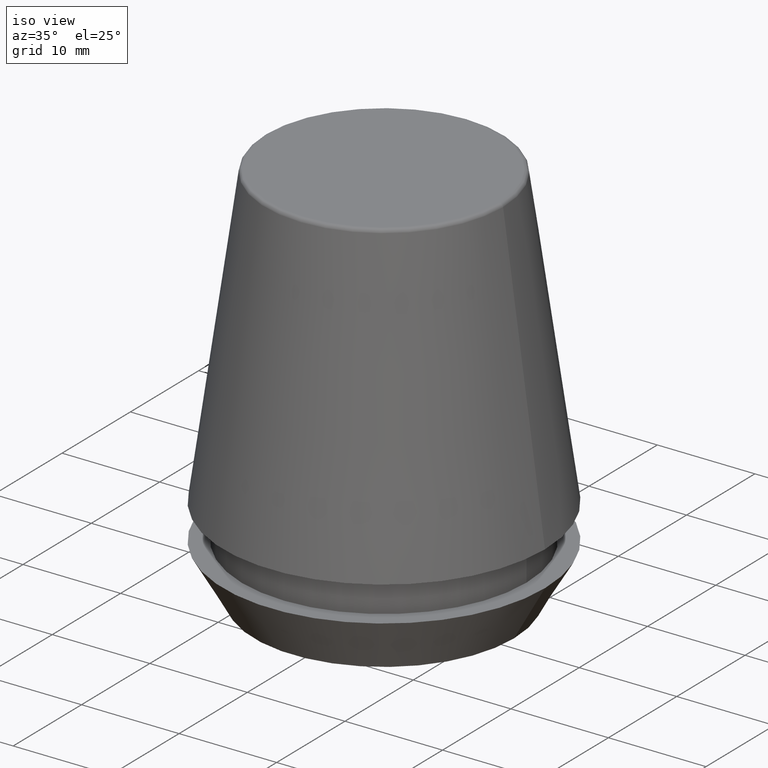
[diagram: clean part render]
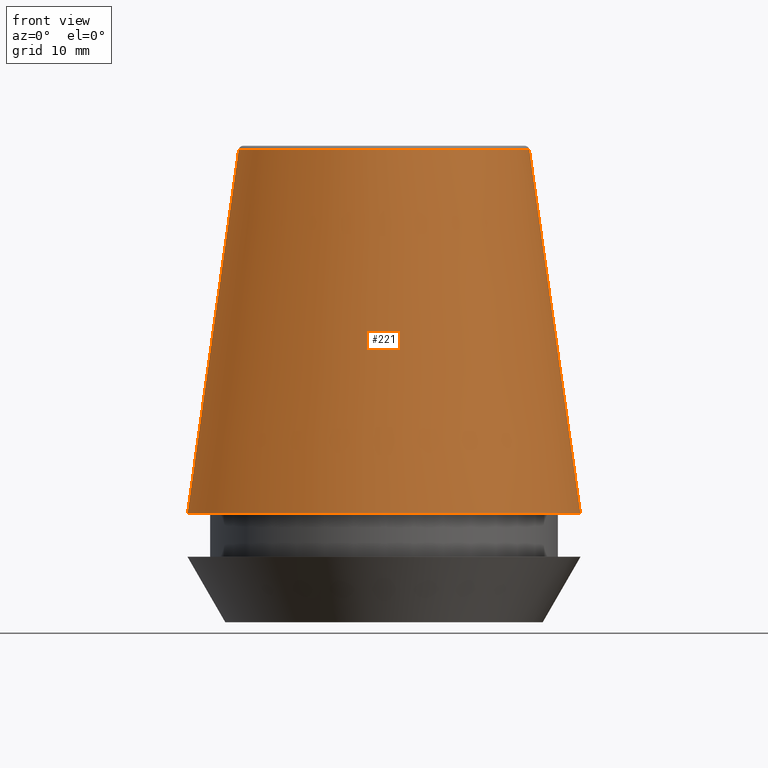
[diagram: tour spotlight — one face highlighted and labeled with its STEP entity id]
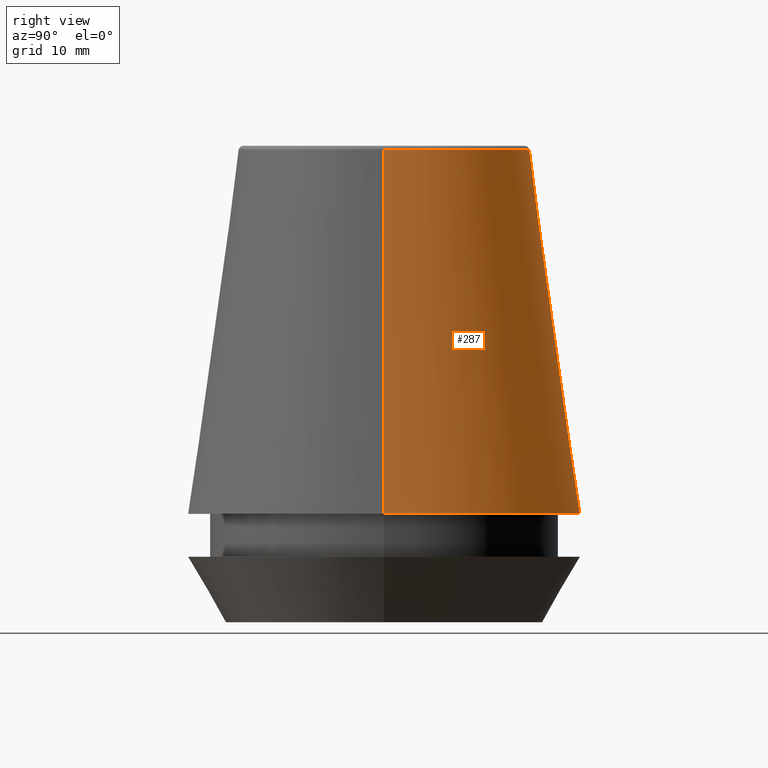
[diagram: tour spotlight — one face highlighted and labeled with its STEP entity id]
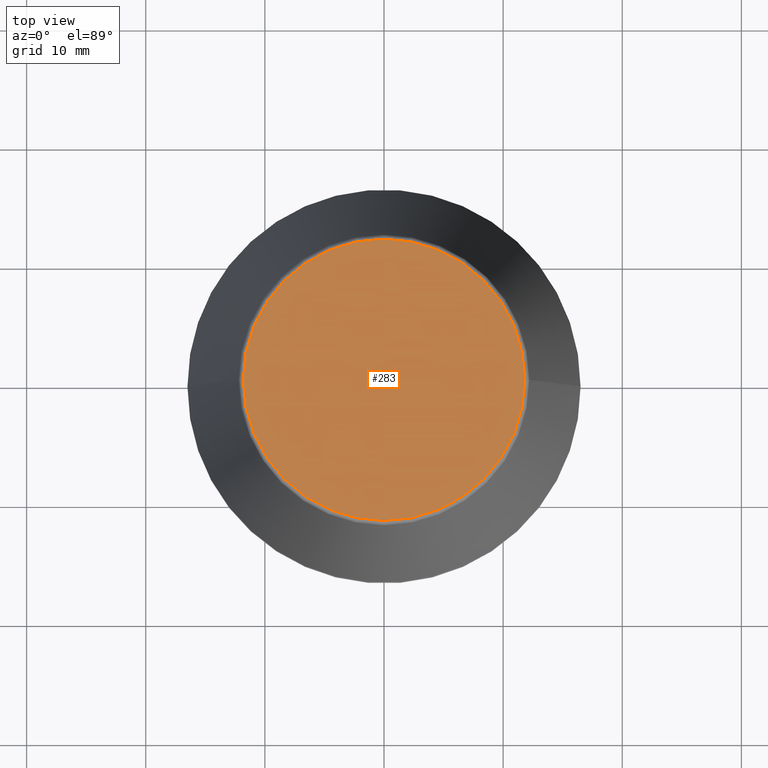
[diagram: tour spotlight — one face highlighted and labeled with its STEP entity id]
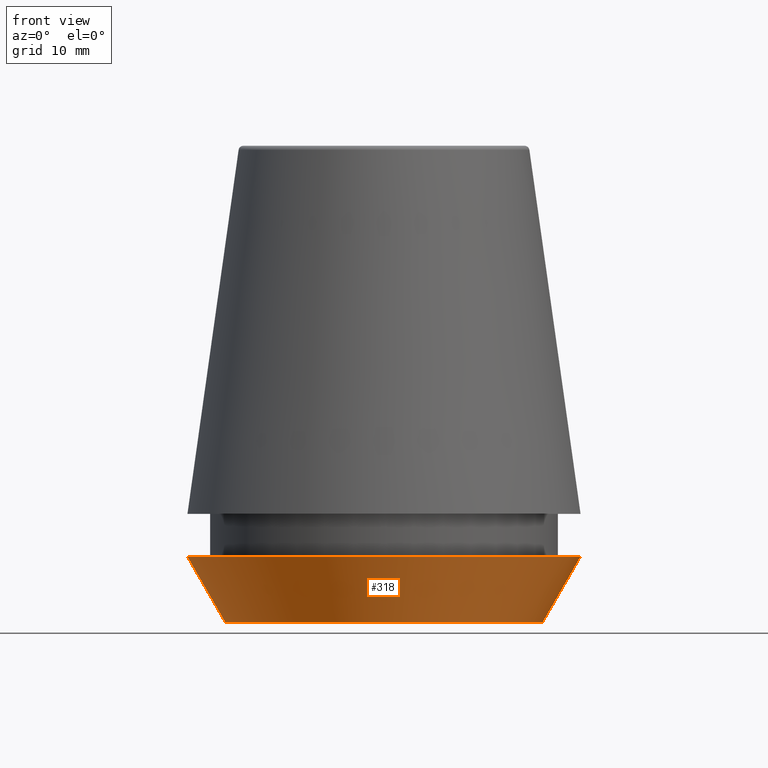
[diagram: tour spotlight — one face highlighted and labeled with its STEP entity id]
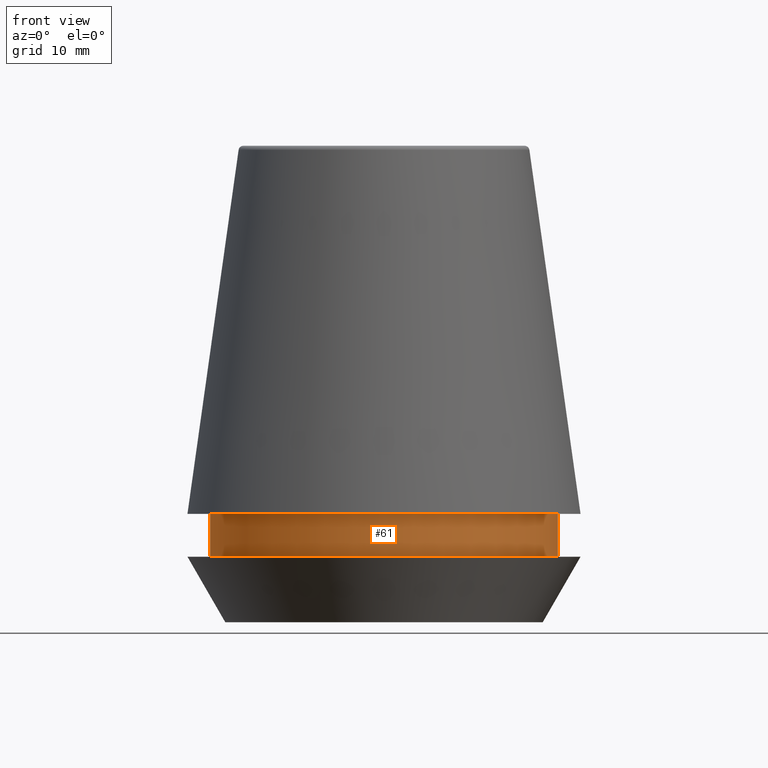
[diagram: tour spotlight — one face highlighted and labeled with its STEP entity id]
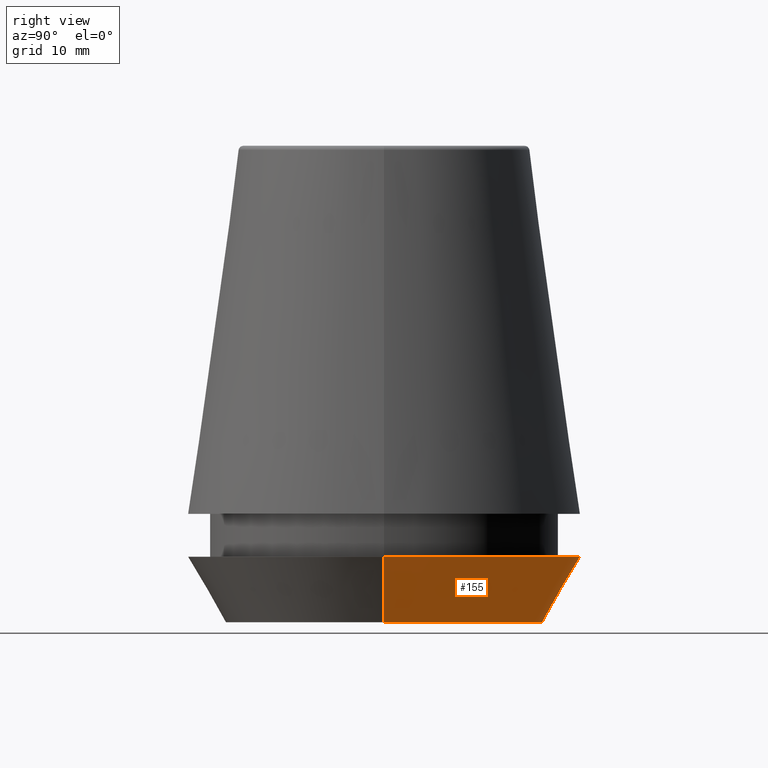
[diagram: tour spotlight — one face highlighted and labeled with its STEP entity id]
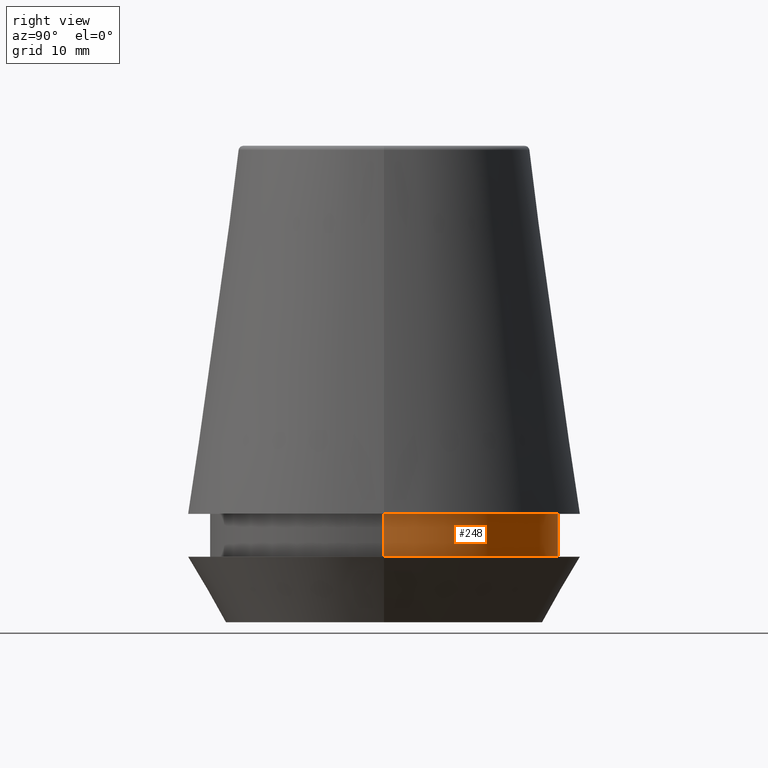
[diagram: tour spotlight — one face highlighted and labeled with its STEP entity id]
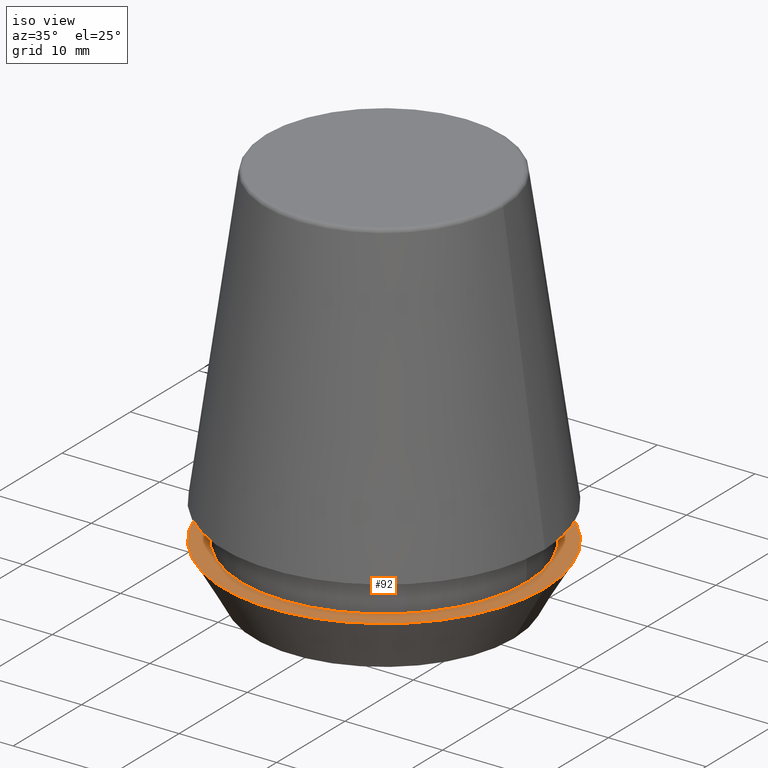
[diagram: tour spotlight — one face highlighted and labeled with its STEP entity id]
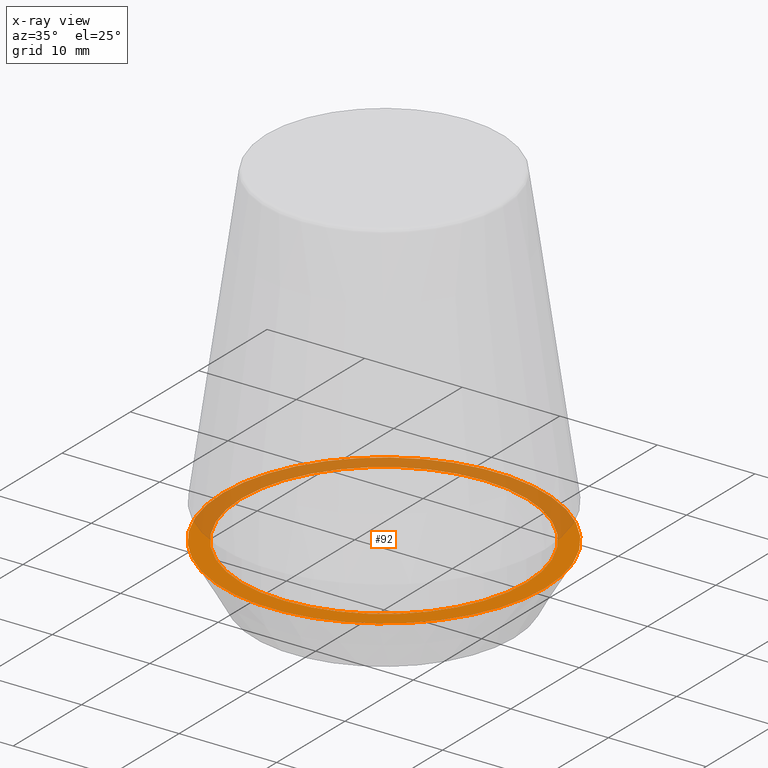
[diagram: x-ray of the same camera — body ghosted, this tour face saturated]
A machine part: a face-by-face anatomy tour. The part has 12 B-rep faces; the first image is the clean iso view, then the 8 largest visible faces are spotlighted one at a time (largest first), each with its STEP entity span.

Face 1 — front view, entity #221. In plain terms, the highlighted conical surface has half-angle 8 deg.
Definition (entity closure, byte-faithful):
#3 = ORIENTED_EDGE ( 'NONE', *, *, #351, .F. ) ;
#4 = ORIENTED_EDGE ( 'NONE', *, *, #353, .F. ) ;
#17 = EDGE_LOOP ( 'NONE', ( #4, #3, #22, #130 ) ) ;
#22 = ORIENTED_EDGE ( 'NONE', *, *, #72, .T. ) ;
#54 = AXIS2_PLACEMENT_3D ( 'NONE', #113, #332, #301 ) ;
#67 = LINE ( 'NONE', #354, #365 ) ;
#72 = EDGE_CURVE ( 'NONE', #194, #290, #216, .T. ) ;
#83 = VECTOR ( 'NONE', #311, 1000.000000000000000 ) ;
#84 = AXIS2_PLACEMENT_3D ( 'NONE', #172, #142, #174 ) ;
#94 = VERTEX_POINT ( 'NONE', #159 ) ;
#113 = CARTESIAN_POINT ( 'NONE',  ( 0.0000000000000000000, 0.0000000000000000000, 9.099999999999997900 ) ) ;
#115 = CARTESIAN_POINT ( 'NONE',  ( 0.0000000000000000000, 0.0000000000000000000, 9.099999999999997900 ) ) ;
#130 = ORIENTED_EDGE ( 'NONE', *, *, #193, .T. ) ;
#142 = DIRECTION ( 'NONE',  ( -0.0000000000000000000, -0.0000000000000000000, 1.000000000000000000 ) ) ;
#148 = DIRECTION ( 'NONE',  ( -1.000000000000000000, 0.0000000000000000000, 0.0000000000000000000 ) ) ;
#159 = CARTESIAN_POINT ( 'NONE',  ( 12.20600611160694300, 1.757755848304969800E-015, 39.65566924038402900 ) ) ;
#172 = CARTESIAN_POINT ( 'NONE',  ( 0.0000000000000000000, 0.0000000000000000000, 39.65566924038402900 ) ) ;
#174 = DIRECTION ( 'NONE',  ( 1.000000000000000000, 0.0000000000000000000, 0.0000000000000000000 ) ) ;
#193 = EDGE_CURVE ( 'NONE', #290, #195, #268, .T. ) ;
#194 = VERTEX_POINT ( 'NONE', #269 ) ;
#195 = VERTEX_POINT ( 'NONE', #302 ) ;
#216 = LINE ( 'NONE', #308, #83 ) ;
#221 = ADVANCED_FACE ( 'NONE', ( #250 ), #243, .T. ) ;
#237 = DIRECTION ( 'NONE',  ( 0.0000000000000000000, 0.0000000000000000000, -1.000000000000000000 ) ) ;
#239 = CARTESIAN_POINT ( 'NONE',  ( -16.50032537154048700, 0.0000000000000000000, 9.099999999999997900 ) ) ;
#243 = CONICAL_SURFACE ( 'NONE', #329, 16.50032537154048700, 0.1396263401595395900 ) ;
#250 = FACE_OUTER_BOUND ( 'NONE', #17, .T. ) ;
#265 = DIRECTION ( 'NONE',  ( 0.1391731009600586900, 1.704378926181473100E-017, -0.9902680687415712500 ) ) ;
#268 = CIRCLE ( 'NONE', #54, 16.50032537154048700 ) ;
#269 = CARTESIAN_POINT ( 'NONE',  ( -12.20600611160694300, 0.0000000000000000000, 39.65566924038402900 ) ) ;
#290 = VERTEX_POINT ( 'NONE', #239 ) ;
#301 = DIRECTION ( 'NONE',  ( 1.000000000000000000, 0.0000000000000000000, 0.0000000000000000000 ) ) ;
#302 = CARTESIAN_POINT ( 'NONE',  ( 16.50032537154048700, 2.020707065114692300E-015, 9.099999999999997900 ) ) ;
#308 = CARTESIAN_POINT ( 'NONE',  ( -16.50032537154048700, 0.0000000000000000000, 9.099999999999997900 ) ) ;
#311 = DIRECTION ( 'NONE',  ( -0.1391731009600586900, 0.0000000000000000000, -0.9902680687415712500 ) ) ;
#321 = CIRCLE ( 'NONE', #84, 12.20600611160694300 ) ;
#329 = AXIS2_PLACEMENT_3D ( 'NONE', #115, #237, #148 ) ;
#332 = DIRECTION ( 'NONE',  ( -0.0000000000000000000, -0.0000000000000000000, 1.000000000000000000 ) ) ;
#351 = EDGE_CURVE ( 'NONE', #194, #94, #321, .T. ) ;
#353 = EDGE_CURVE ( 'NONE', #94, #195, #67, .T. ) ;
#354 = CARTESIAN_POINT ( 'NONE',  ( 16.50032537154048700, 2.020707065114692300E-015, 9.099999999999997900 ) ) ;
#365 = VECTOR ( 'NONE', #265, 1000.000000000000000 ) ;

Face 2 — right view, entity #287. In plain terms, the highlighted conical surface has half-angle 8 deg.
Definition (entity closure, byte-faithful):
#1 = DIRECTION ( 'NONE',  ( 1.000000000000000000, 0.0000000000000000000, 0.0000000000000000000 ) ) ;
#6 = ORIENTED_EDGE ( 'NONE', *, *, #206, .T. ) ;
#51 = DIRECTION ( 'NONE',  ( 0.0000000000000000000, 0.0000000000000000000, -1.000000000000000000 ) ) ;
#55 = CARTESIAN_POINT ( 'NONE',  ( 0.0000000000000000000, 0.0000000000000000000, 9.099999999999997900 ) ) ;
#56 = DIRECTION ( 'NONE',  ( -0.0000000000000000000, -0.0000000000000000000, 1.000000000000000000 ) ) ;
#60 = ORIENTED_EDGE ( 'NONE', *, *, #375, .F. ) ;
#67 = LINE ( 'NONE', #354, #365 ) ;
#72 = EDGE_CURVE ( 'NONE', #194, #290, #216, .T. ) ;
#83 = VECTOR ( 'NONE', #311, 1000.000000000000000 ) ;
#94 = VERTEX_POINT ( 'NONE', #159 ) ;
#126 = ORIENTED_EDGE ( 'NONE', *, *, #72, .F. ) ;
#128 = CONICAL_SURFACE ( 'NONE', #338, 16.50032537154048700, 0.1396263401595395900 ) ;
#144 = AXIS2_PLACEMENT_3D ( 'NONE', #253, #263, #1 ) ;
#159 = CARTESIAN_POINT ( 'NONE',  ( 12.20600611160694300, 1.757755848304969800E-015, 39.65566924038402900 ) ) ;
#168 = DIRECTION ( 'NONE',  ( -1.000000000000000000, 0.0000000000000000000, 0.0000000000000000000 ) ) ;
#171 = ORIENTED_EDGE ( 'NONE', *, *, #353, .T. ) ;
#178 = EDGE_LOOP ( 'NONE', ( #60, #171, #6, #126 ) ) ;
#194 = VERTEX_POINT ( 'NONE', #269 ) ;
#195 = VERTEX_POINT ( 'NONE', #302 ) ;
#198 = FACE_OUTER_BOUND ( 'NONE', #178, .T. ) ;
#206 = EDGE_CURVE ( 'NONE', #195, #290, #356, .T. ) ;
#216 = LINE ( 'NONE', #308, #83 ) ;
#239 = CARTESIAN_POINT ( 'NONE',  ( -16.50032537154048700, 0.0000000000000000000, 9.099999999999997900 ) ) ;
#253 = CARTESIAN_POINT ( 'NONE',  ( 0.0000000000000000000, 0.0000000000000000000, 39.65566924038402900 ) ) ;
#263 = DIRECTION ( 'NONE',  ( -0.0000000000000000000, -0.0000000000000000000, 1.000000000000000000 ) ) ;
#265 = DIRECTION ( 'NONE',  ( 0.1391731009600586900, 1.704378926181473100E-017, -0.9902680687415712500 ) ) ;
#269 = CARTESIAN_POINT ( 'NONE',  ( -12.20600611160694300, 0.0000000000000000000, 39.65566924038402900 ) ) ;
#278 = AXIS2_PLACEMENT_3D ( 'NONE', #55, #56, #293 ) ;
#287 = ADVANCED_FACE ( 'NONE', ( #198 ), #128, .T. ) ;
#290 = VERTEX_POINT ( 'NONE', #239 ) ;
#293 = DIRECTION ( 'NONE',  ( 1.000000000000000000, 0.0000000000000000000, 0.0000000000000000000 ) ) ;
#302 = CARTESIAN_POINT ( 'NONE',  ( 16.50032537154048700, 2.020707065114692300E-015, 9.099999999999997900 ) ) ;
#308 = CARTESIAN_POINT ( 'NONE',  ( -16.50032537154048700, 0.0000000000000000000, 9.099999999999997900 ) ) ;
#310 = CIRCLE ( 'NONE', #144, 12.20600611160694300 ) ;
#311 = DIRECTION ( 'NONE',  ( -0.1391731009600586900, 0.0000000000000000000, -0.9902680687415712500 ) ) ;
#338 = AXIS2_PLACEMENT_3D ( 'NONE', #366, #51, #168 ) ;
#353 = EDGE_CURVE ( 'NONE', #94, #195, #67, .T. ) ;
#354 = CARTESIAN_POINT ( 'NONE',  ( 16.50032537154048700, 2.020707065114692300E-015, 9.099999999999997900 ) ) ;
#356 = CIRCLE ( 'NONE', #278, 16.50032537154048700 ) ;
#365 = VECTOR ( 'NONE', #265, 1000.000000000000000 ) ;
#366 = CARTESIAN_POINT ( 'NONE',  ( 0.0000000000000000000, 0.0000000000000000000, 9.099999999999997900 ) ) ;
#375 = EDGE_CURVE ( 'NONE', #94, #194, #310, .T. ) ;

Face 3 — top view, entity #283. In plain terms, the highlighted planar face has unit normal (0, 0, -1).
Definition (entity closure, byte-faithful):
#9 = AXIS2_PLACEMENT_3D ( 'NONE', #218, #119, #387 ) ;
#12 = DIRECTION ( 'NONE',  ( -0.0000000000000000000, -0.0000000000000000000, 1.000000000000000000 ) ) ;
#16 = ORIENTED_EDGE ( 'NONE', *, *, #303, .T. ) ;
#30 = DIRECTION ( 'NONE',  ( 0.0000000000000000000, 0.0000000000000000000, -1.000000000000000000 ) ) ;
#38 = AXIS2_PLACEMENT_3D ( 'NONE', #176, #12, #364 ) ;
#70 = EDGE_LOOP ( 'NONE', ( #16, #152 ) ) ;
#96 = AXIS2_PLACEMENT_3D ( 'NONE', #319, #30, #360 ) ;
#119 = DIRECTION ( 'NONE',  ( -0.0000000000000000000, -0.0000000000000000000, 1.000000000000000000 ) ) ;
#152 = ORIENTED_EDGE ( 'NONE', *, *, #190, .T. ) ;
#161 = FACE_OUTER_BOUND ( 'NONE', #70, .T. ) ;
#176 = CARTESIAN_POINT ( 'NONE',  ( 0.0000000000000000000, 0.0000000000000000000, 40.00000000000000700 ) ) ;
#190 = EDGE_CURVE ( 'NONE', #374, #280, #323, .T. ) ;
#218 = CARTESIAN_POINT ( 'NONE',  ( 0.0000000000000000000, 0.0000000000000000000, 40.00000000000000700 ) ) ;
#257 = CIRCLE ( 'NONE', #9, 11.80989888411031400 ) ;
#280 = VERTEX_POINT ( 'NONE', #347 ) ;
#283 = ADVANCED_FACE ( 'NONE', ( #161 ), #295, .F. ) ;
#295 = PLANE ( 'NONE',  #96 ) ;
#303 = EDGE_CURVE ( 'NONE', #280, #374, #257, .T. ) ;
#319 = CARTESIAN_POINT ( 'NONE',  ( 0.0000000000000000000, 11.80989888411031400, 40.00000000000000700 ) ) ;
#323 = CIRCLE ( 'NONE', #38, 11.80989888411031400 ) ;
#347 = CARTESIAN_POINT ( 'NONE',  ( 11.80989888411031400, 0.0000000000000000000, 40.00000000000000700 ) ) ;
#360 = DIRECTION ( 'NONE',  ( -1.000000000000000000, 0.0000000000000000000, -0.0000000000000000000 ) ) ;
#364 = DIRECTION ( 'NONE',  ( 1.000000000000000000, 0.0000000000000000000, 0.0000000000000000000 ) ) ;
#374 = VERTEX_POINT ( 'NONE', #377 ) ;
#377 = CARTESIAN_POINT ( 'NONE',  ( -11.80989888411031400, 1.470550059081603400E-015, 40.00000000000000700 ) ) ;
#387 = DIRECTION ( 'NONE',  ( 1.000000000000000000, 0.0000000000000000000, 0.0000000000000000000 ) ) ;

Face 4 — front view, entity #318. In plain terms, the highlighted conical surface has half-angle 30 deg.
Definition (entity closure, byte-faithful):
#2 = LINE ( 'NONE', #373, #281 ) ;
#7 = CARTESIAN_POINT ( 'NONE',  ( -13.32457351945710200, 1.826228424826902600E-015, 0.0000000000000000000 ) ) ;
#18 = CARTESIAN_POINT ( 'NONE',  ( 16.50000000000000000, 0.0000000000000000000, 5.500000000000005300 ) ) ;
#23 = AXIS2_PLACEMENT_3D ( 'NONE', #125, #223, #64 ) ;
#31 = CARTESIAN_POINT ( 'NONE',  ( 0.0000000000000000000, 0.0000000000000000000, 0.0000000000000000000 ) ) ;
#43 = FACE_OUTER_BOUND ( 'NONE', #262, .T. ) ;
#49 = ORIENTED_EDGE ( 'NONE', *, *, #77, .T. ) ;
#64 = DIRECTION ( 'NONE',  ( 1.000000000000000000, 0.0000000000000000000, 0.0000000000000000000 ) ) ;
#74 = CIRCLE ( 'NONE', #173, 13.32457351945710200 ) ;
#77 = EDGE_CURVE ( 'NONE', #209, #88, #120, .T. ) ;
#82 = ORIENTED_EDGE ( 'NONE', *, *, #97, .F. ) ;
#88 = VERTEX_POINT ( 'NONE', #18 ) ;
#97 = EDGE_CURVE ( 'NONE', #238, #129, #2, .T. ) ;
#120 = LINE ( 'NONE', #127, #260 ) ;
#124 = DIRECTION ( 'NONE',  ( -0.4999999999999947300, 6.123233995736700700E-017, 0.8660254037844418200 ) ) ;
#125 = CARTESIAN_POINT ( 'NONE',  ( 0.0000000000000000000, 0.0000000000000000000, 0.0000000000000000000 ) ) ;
#127 = CARTESIAN_POINT ( 'NONE',  ( 13.32457351945710200, 0.0000000000000000000, 0.0000000000000000000 ) ) ;
#129 = VERTEX_POINT ( 'NONE', #188 ) ;
#173 = AXIS2_PLACEMENT_3D ( 'NONE', #31, #229, #384 ) ;
#180 = CARTESIAN_POINT ( 'NONE',  ( 0.0000000000000000000, 0.0000000000000000000, 5.500000000000005300 ) ) ;
#182 = DIRECTION ( 'NONE',  ( -0.0000000000000000000, -0.0000000000000000000, 1.000000000000000000 ) ) ;
#188 = CARTESIAN_POINT ( 'NONE',  ( -16.50000000000000000, 2.020667218593133100E-015, 5.500000000000005300 ) ) ;
#203 = DIRECTION ( 'NONE',  ( 1.000000000000000000, 0.0000000000000000000, 0.0000000000000000000 ) ) ;
#209 = VERTEX_POINT ( 'NONE', #232 ) ;
#212 = EDGE_CURVE ( 'NONE', #238, #209, #74, .T. ) ;
#223 = DIRECTION ( 'NONE',  ( -0.0000000000000000000, -0.0000000000000000000, 1.000000000000000000 ) ) ;
#229 = DIRECTION ( 'NONE',  ( -0.0000000000000000000, -0.0000000000000000000, 1.000000000000000000 ) ) ;
#232 = CARTESIAN_POINT ( 'NONE',  ( 13.32457351945710200, 0.0000000000000000000, 0.0000000000000000000 ) ) ;
#238 = VERTEX_POINT ( 'NONE', #7 ) ;
#246 = DIRECTION ( 'NONE',  ( 0.4999999999999947300, 0.0000000000000000000, 0.8660254037844418200 ) ) ;
#251 = EDGE_CURVE ( 'NONE', #129, #88, #264, .T. ) ;
#260 = VECTOR ( 'NONE', #246, 999.9999999999998900 ) ;
#262 = EDGE_LOOP ( 'NONE', ( #82, #294, #49, #266 ) ) ;
#264 = CIRCLE ( 'NONE', #299, 16.50000000000000000 ) ;
#266 = ORIENTED_EDGE ( 'NONE', *, *, #251, .F. ) ;
#281 = VECTOR ( 'NONE', #124, 999.9999999999998900 ) ;
#294 = ORIENTED_EDGE ( 'NONE', *, *, #212, .T. ) ;
#298 = CONICAL_SURFACE ( 'NONE', #23, 13.32457351945710200, 0.5235987755982927100 ) ;
#299 = AXIS2_PLACEMENT_3D ( 'NONE', #180, #182, #203 ) ;
#318 = ADVANCED_FACE ( 'NONE', ( #43 ), #298, .T. ) ;
#373 = CARTESIAN_POINT ( 'NONE',  ( -13.32457351945710200, 1.631789631060672300E-015, 0.0000000000000000000 ) ) ;
#384 = DIRECTION ( 'NONE',  ( 1.000000000000000000, 0.0000000000000000000, 0.0000000000000000000 ) ) ;

Face 5 — front view, entity #61. In plain terms, the highlighted cylindrical surface (partial cylindrical patch) has radius 14.6 mm, axis along (-0, -0, 1).
Definition (entity closure, byte-faithful):
#20 = CARTESIAN_POINT ( 'NONE',  ( 0.0000000000000000000, 0.0000000000000000000, 5.500000000000005300 ) ) ;
#28 = CARTESIAN_POINT ( 'NONE',  ( 0.0000000000000000000, 0.0000000000000000000, 101.8074564848000400 ) ) ;
#29 = VERTEX_POINT ( 'NONE', #45 ) ;
#45 = CARTESIAN_POINT ( 'NONE',  ( -14.60000000000000000, 1.787984326755135800E-015, 9.099999999999997900 ) ) ;
#57 = EDGE_CURVE ( 'NONE', #284, #357, #205, .T. ) ;
#61 = ADVANCED_FACE ( 'NONE', ( #312 ), #252, .T. ) ;
#68 = DIRECTION ( 'NONE',  ( -0.0000000000000000000, -0.0000000000000000000, 1.000000000000000000 ) ) ;
#69 = EDGE_CURVE ( 'NONE', #284, #29, #192, .T. ) ;
#78 = ORIENTED_EDGE ( 'NONE', *, *, #69, .F. ) ;
#91 = CIRCLE ( 'NONE', #105, 14.60000000000000000 ) ;
#95 = CARTESIAN_POINT ( 'NONE',  ( -14.60000000000000000, 1.787984326755135800E-015, 101.8074564848000400 ) ) ;
#105 = AXIS2_PLACEMENT_3D ( 'NONE', #371, #369, #273 ) ;
#135 = AXIS2_PLACEMENT_3D ( 'NONE', #28, #376, #342 ) ;
#139 = ORIENTED_EDGE ( 'NONE', *, *, #368, .F. ) ;
#150 = DIRECTION ( 'NONE',  ( -0.0000000000000000000, -0.0000000000000000000, 1.000000000000000000 ) ) ;
#162 = CARTESIAN_POINT ( 'NONE',  ( 14.60000000000000000, 0.0000000000000000000, 5.500000000000005300 ) ) ;
#179 = VECTOR ( 'NONE', #210, 1000.000000000000000 ) ;
#185 = EDGE_LOOP ( 'NONE', ( #78, #381, #378, #139 ) ) ;
#191 = CARTESIAN_POINT ( 'NONE',  ( 14.60000000000000000, 0.0000000000000000000, 9.099999999999997900 ) ) ;
#192 = LINE ( 'NONE', #95, #179 ) ;
#202 = EDGE_CURVE ( 'NONE', #357, #305, #315, .T. ) ;
#205 = CIRCLE ( 'NONE', #244, 14.60000000000000000 ) ;
#210 = DIRECTION ( 'NONE',  ( -0.0000000000000000000, -0.0000000000000000000, 1.000000000000000000 ) ) ;
#224 = VECTOR ( 'NONE', #150, 1000.000000000000000 ) ;
#244 = AXIS2_PLACEMENT_3D ( 'NONE', #20, #68, #277 ) ;
#252 = CYLINDRICAL_SURFACE ( 'NONE', #135, 14.60000000000000000 ) ;
#273 = DIRECTION ( 'NONE',  ( 1.000000000000000000, 0.0000000000000000000, 0.0000000000000000000 ) ) ;
#277 = DIRECTION ( 'NONE',  ( 1.000000000000000000, 0.0000000000000000000, 0.0000000000000000000 ) ) ;
#284 = VERTEX_POINT ( 'NONE', #330 ) ;
#305 = VERTEX_POINT ( 'NONE', #191 ) ;
#307 = CARTESIAN_POINT ( 'NONE',  ( 14.60000000000000000, 0.0000000000000000000, 101.8074564848000400 ) ) ;
#312 = FACE_OUTER_BOUND ( 'NONE', #185, .T. ) ;
#315 = LINE ( 'NONE', #307, #224 ) ;
#330 = CARTESIAN_POINT ( 'NONE',  ( -14.60000000000000000, 1.787984326755135800E-015, 5.500000000000005300 ) ) ;
#342 = DIRECTION ( 'NONE',  ( 1.000000000000000000, 0.0000000000000000000, 0.0000000000000000000 ) ) ;
#357 = VERTEX_POINT ( 'NONE', #162 ) ;
#368 = EDGE_CURVE ( 'NONE', #29, #305, #91, .T. ) ;
#369 = DIRECTION ( 'NONE',  ( -0.0000000000000000000, -0.0000000000000000000, 1.000000000000000000 ) ) ;
#371 = CARTESIAN_POINT ( 'NONE',  ( 0.0000000000000000000, 0.0000000000000000000, 9.099999999999997900 ) ) ;
#376 = DIRECTION ( 'NONE',  ( -0.0000000000000000000, -0.0000000000000000000, 1.000000000000000000 ) ) ;
#378 = ORIENTED_EDGE ( 'NONE', *, *, #202, .T. ) ;
#381 = ORIENTED_EDGE ( 'NONE', *, *, #57, .T. ) ;

Face 6 — right view, entity #155. In plain terms, the highlighted conical surface has half-angle 30 deg.
Definition (entity closure, byte-faithful):
#2 = LINE ( 'NONE', #373, #281 ) ;
#7 = CARTESIAN_POINT ( 'NONE',  ( -13.32457351945710200, 1.826228424826902600E-015, 0.0000000000000000000 ) ) ;
#8 = ORIENTED_EDGE ( 'NONE', *, *, #77, .F. ) ;
#14 = DIRECTION ( 'NONE',  ( 1.000000000000000000, 0.0000000000000000000, 0.0000000000000000000 ) ) ;
#18 = CARTESIAN_POINT ( 'NONE',  ( 16.50000000000000000, 0.0000000000000000000, 5.500000000000005300 ) ) ;
#42 = EDGE_CURVE ( 'NONE', #88, #129, #151, .T. ) ;
#77 = EDGE_CURVE ( 'NONE', #209, #88, #120, .T. ) ;
#80 = CIRCLE ( 'NONE', #181, 13.32457351945710200 ) ;
#88 = VERTEX_POINT ( 'NONE', #18 ) ;
#90 = EDGE_CURVE ( 'NONE', #209, #238, #80, .T. ) ;
#97 = EDGE_CURVE ( 'NONE', #238, #129, #2, .T. ) ;
#101 = AXIS2_PLACEMENT_3D ( 'NONE', #207, #304, #14 ) ;
#104 = DIRECTION ( 'NONE',  ( -0.0000000000000000000, -0.0000000000000000000, 1.000000000000000000 ) ) ;
#112 = AXIS2_PLACEMENT_3D ( 'NONE', #256, #104, #220 ) ;
#120 = LINE ( 'NONE', #127, #260 ) ;
#124 = DIRECTION ( 'NONE',  ( -0.4999999999999947300, 6.123233995736700700E-017, 0.8660254037844418200 ) ) ;
#127 = CARTESIAN_POINT ( 'NONE',  ( 13.32457351945710200, 0.0000000000000000000, 0.0000000000000000000 ) ) ;
#129 = VERTEX_POINT ( 'NONE', #188 ) ;
#151 = CIRCLE ( 'NONE', #112, 16.50000000000000000 ) ;
#155 = ADVANCED_FACE ( 'NONE', ( #200 ), #279, .T. ) ;
#157 = DIRECTION ( 'NONE',  ( 1.000000000000000000, 0.0000000000000000000, 0.0000000000000000000 ) ) ;
#164 = ORIENTED_EDGE ( 'NONE', *, *, #90, .T. ) ;
#181 = AXIS2_PLACEMENT_3D ( 'NONE', #306, #340, #157 ) ;
#187 = EDGE_LOOP ( 'NONE', ( #164, #189, #300, #8 ) ) ;
#188 = CARTESIAN_POINT ( 'NONE',  ( -16.50000000000000000, 2.020667218593133100E-015, 5.500000000000005300 ) ) ;
#189 = ORIENTED_EDGE ( 'NONE', *, *, #97, .T. ) ;
#200 = FACE_OUTER_BOUND ( 'NONE', #187, .T. ) ;
#207 = CARTESIAN_POINT ( 'NONE',  ( 0.0000000000000000000, 0.0000000000000000000, 0.0000000000000000000 ) ) ;
#209 = VERTEX_POINT ( 'NONE', #232 ) ;
#220 = DIRECTION ( 'NONE',  ( 1.000000000000000000, 0.0000000000000000000, 0.0000000000000000000 ) ) ;
#232 = CARTESIAN_POINT ( 'NONE',  ( 13.32457351945710200, 0.0000000000000000000, 0.0000000000000000000 ) ) ;
#238 = VERTEX_POINT ( 'NONE', #7 ) ;
#246 = DIRECTION ( 'NONE',  ( 0.4999999999999947300, 0.0000000000000000000, 0.8660254037844418200 ) ) ;
#256 = CARTESIAN_POINT ( 'NONE',  ( 0.0000000000000000000, 0.0000000000000000000, 5.500000000000005300 ) ) ;
#260 = VECTOR ( 'NONE', #246, 999.9999999999998900 ) ;
#279 = CONICAL_SURFACE ( 'NONE', #101, 13.32457351945710200, 0.5235987755982927100 ) ;
#281 = VECTOR ( 'NONE', #124, 999.9999999999998900 ) ;
#300 = ORIENTED_EDGE ( 'NONE', *, *, #42, .F. ) ;
#304 = DIRECTION ( 'NONE',  ( -0.0000000000000000000, -0.0000000000000000000, 1.000000000000000000 ) ) ;
#306 = CARTESIAN_POINT ( 'NONE',  ( 0.0000000000000000000, 0.0000000000000000000, 0.0000000000000000000 ) ) ;
#340 = DIRECTION ( 'NONE',  ( -0.0000000000000000000, -0.0000000000000000000, 1.000000000000000000 ) ) ;
#373 = CARTESIAN_POINT ( 'NONE',  ( -13.32457351945710200, 1.631789631060672300E-015, 0.0000000000000000000 ) ) ;

Face 7 — right view, entity #248. In plain terms, the highlighted cylindrical surface (partial cylindrical patch) has radius 14.6 mm, axis along (-0, -0, 1).
Definition (entity closure, byte-faithful):
#15 = CARTESIAN_POINT ( 'NONE',  ( 0.0000000000000000000, 0.0000000000000000000, 5.500000000000005300 ) ) ;
#26 = DIRECTION ( 'NONE',  ( -0.0000000000000000000, -0.0000000000000000000, 1.000000000000000000 ) ) ;
#29 = VERTEX_POINT ( 'NONE', #45 ) ;
#45 = CARTESIAN_POINT ( 'NONE',  ( -14.60000000000000000, 1.787984326755135800E-015, 9.099999999999997900 ) ) ;
#50 = DIRECTION ( 'NONE',  ( 1.000000000000000000, 0.0000000000000000000, 0.0000000000000000000 ) ) ;
#58 = CARTESIAN_POINT ( 'NONE',  ( 0.0000000000000000000, 0.0000000000000000000, 101.8074564848000400 ) ) ;
#69 = EDGE_CURVE ( 'NONE', #284, #29, #192, .T. ) ;
#95 = CARTESIAN_POINT ( 'NONE',  ( -14.60000000000000000, 1.787984326755135800E-015, 101.8074564848000400 ) ) ;
#107 = CIRCLE ( 'NONE', #117, 14.60000000000000000 ) ;
#117 = AXIS2_PLACEMENT_3D ( 'NONE', #15, #272, #241 ) ;
#131 = EDGE_CURVE ( 'NONE', #357, #284, #107, .T. ) ;
#137 = FACE_OUTER_BOUND ( 'NONE', #158, .T. ) ;
#140 = AXIS2_PLACEMENT_3D ( 'NONE', #58, #358, #204 ) ;
#141 = CIRCLE ( 'NONE', #348, 14.60000000000000000 ) ;
#150 = DIRECTION ( 'NONE',  ( -0.0000000000000000000, -0.0000000000000000000, 1.000000000000000000 ) ) ;
#158 = EDGE_LOOP ( 'NONE', ( #270, #240, #286, #211 ) ) ;
#162 = CARTESIAN_POINT ( 'NONE',  ( 14.60000000000000000, 0.0000000000000000000, 5.500000000000005300 ) ) ;
#179 = VECTOR ( 'NONE', #210, 1000.000000000000000 ) ;
#191 = CARTESIAN_POINT ( 'NONE',  ( 14.60000000000000000, 0.0000000000000000000, 9.099999999999997900 ) ) ;
#192 = LINE ( 'NONE', #95, #179 ) ;
#202 = EDGE_CURVE ( 'NONE', #357, #305, #315, .T. ) ;
#204 = DIRECTION ( 'NONE',  ( 1.000000000000000000, 0.0000000000000000000, 0.0000000000000000000 ) ) ;
#210 = DIRECTION ( 'NONE',  ( -0.0000000000000000000, -0.0000000000000000000, 1.000000000000000000 ) ) ;
#211 = ORIENTED_EDGE ( 'NONE', *, *, #202, .F. ) ;
#219 = CYLINDRICAL_SURFACE ( 'NONE', #140, 14.60000000000000000 ) ;
#224 = VECTOR ( 'NONE', #150, 1000.000000000000000 ) ;
#240 = ORIENTED_EDGE ( 'NONE', *, *, #69, .T. ) ;
#241 = DIRECTION ( 'NONE',  ( 1.000000000000000000, 0.0000000000000000000, 0.0000000000000000000 ) ) ;
#248 = ADVANCED_FACE ( 'NONE', ( #137 ), #219, .T. ) ;
#270 = ORIENTED_EDGE ( 'NONE', *, *, #131, .T. ) ;
#272 = DIRECTION ( 'NONE',  ( -0.0000000000000000000, -0.0000000000000000000, 1.000000000000000000 ) ) ;
#284 = VERTEX_POINT ( 'NONE', #330 ) ;
#286 = ORIENTED_EDGE ( 'NONE', *, *, #322, .F. ) ;
#305 = VERTEX_POINT ( 'NONE', #191 ) ;
#307 = CARTESIAN_POINT ( 'NONE',  ( 14.60000000000000000, 0.0000000000000000000, 101.8074564848000400 ) ) ;
#315 = LINE ( 'NONE', #307, #224 ) ;
#322 = EDGE_CURVE ( 'NONE', #305, #29, #141, .T. ) ;
#330 = CARTESIAN_POINT ( 'NONE',  ( -14.60000000000000000, 1.787984326755135800E-015, 5.500000000000005300 ) ) ;
#348 = AXIS2_PLACEMENT_3D ( 'NONE', #386, #26, #50 ) ;
#357 = VERTEX_POINT ( 'NONE', #162 ) ;
#358 = DIRECTION ( 'NONE',  ( -0.0000000000000000000, -0.0000000000000000000, 1.000000000000000000 ) ) ;
#386 = CARTESIAN_POINT ( 'NONE',  ( 0.0000000000000000000, 0.0000000000000000000, 9.099999999999997900 ) ) ;

Face 8 — iso view, entity #92. An x-ray twin of the same camera follows (body ghosted, this face saturated) — the face is partly hidden behind the body. In plain terms, the highlighted planar face has unit normal (0, 0, -1).
Definition (entity closure, byte-faithful):
#15 = CARTESIAN_POINT ( 'NONE',  ( 0.0000000000000000000, 0.0000000000000000000, 5.500000000000005300 ) ) ;
#18 = CARTESIAN_POINT ( 'NONE',  ( 16.50000000000000000, 0.0000000000000000000, 5.500000000000005300 ) ) ;
#20 = CARTESIAN_POINT ( 'NONE',  ( 0.0000000000000000000, 0.0000000000000000000, 5.500000000000005300 ) ) ;
#39 = CARTESIAN_POINT ( 'NONE',  ( 0.0000000000000000000, 16.50000000000000000, 5.500000000000002700 ) ) ;
#42 = EDGE_CURVE ( 'NONE', #88, #129, #151, .T. ) ;
#57 = EDGE_CURVE ( 'NONE', #284, #357, #205, .T. ) ;
#68 = DIRECTION ( 'NONE',  ( -0.0000000000000000000, -0.0000000000000000000, 1.000000000000000000 ) ) ;
#88 = VERTEX_POINT ( 'NONE', #18 ) ;
#92 = ADVANCED_FACE ( 'NONE', ( #226, #324 ), #276, .F. ) ;
#93 = DIRECTION ( 'NONE',  ( -1.000000000000000000, 0.0000000000000000000, -0.0000000000000000000 ) ) ;
#104 = DIRECTION ( 'NONE',  ( -0.0000000000000000000, -0.0000000000000000000, 1.000000000000000000 ) ) ;
#107 = CIRCLE ( 'NONE', #117, 14.60000000000000000 ) ;
#112 = AXIS2_PLACEMENT_3D ( 'NONE', #256, #104, #220 ) ;
#117 = AXIS2_PLACEMENT_3D ( 'NONE', #15, #272, #241 ) ;
#129 = VERTEX_POINT ( 'NONE', #188 ) ;
#131 = EDGE_CURVE ( 'NONE', #357, #284, #107, .T. ) ;
#151 = CIRCLE ( 'NONE', #112, 16.50000000000000000 ) ;
#160 = ORIENTED_EDGE ( 'NONE', *, *, #251, .T. ) ;
#162 = CARTESIAN_POINT ( 'NONE',  ( 14.60000000000000000, 0.0000000000000000000, 5.500000000000005300 ) ) ;
#167 = EDGE_LOOP ( 'NONE', ( #385, #160 ) ) ;
#169 = AXIS2_PLACEMENT_3D ( 'NONE', #39, #245, #93 ) ;
#180 = CARTESIAN_POINT ( 'NONE',  ( 0.0000000000000000000, 0.0000000000000000000, 5.500000000000005300 ) ) ;
#182 = DIRECTION ( 'NONE',  ( -0.0000000000000000000, -0.0000000000000000000, 1.000000000000000000 ) ) ;
#188 = CARTESIAN_POINT ( 'NONE',  ( -16.50000000000000000, 2.020667218593133100E-015, 5.500000000000005300 ) ) ;
#203 = DIRECTION ( 'NONE',  ( 1.000000000000000000, 0.0000000000000000000, 0.0000000000000000000 ) ) ;
#205 = CIRCLE ( 'NONE', #244, 14.60000000000000000 ) ;
#220 = DIRECTION ( 'NONE',  ( 1.000000000000000000, 0.0000000000000000000, 0.0000000000000000000 ) ) ;
#226 = FACE_BOUND ( 'NONE', #231, .T. ) ;
#231 = EDGE_LOOP ( 'NONE', ( #259, #242 ) ) ;
#241 = DIRECTION ( 'NONE',  ( 1.000000000000000000, 0.0000000000000000000, 0.0000000000000000000 ) ) ;
#242 = ORIENTED_EDGE ( 'NONE', *, *, #57, .F. ) ;
#244 = AXIS2_PLACEMENT_3D ( 'NONE', #20, #68, #277 ) ;
#245 = DIRECTION ( 'NONE',  ( 0.0000000000000000000, 0.0000000000000000000, -1.000000000000000000 ) ) ;
#251 = EDGE_CURVE ( 'NONE', #129, #88, #264, .T. ) ;
#256 = CARTESIAN_POINT ( 'NONE',  ( 0.0000000000000000000, 0.0000000000000000000, 5.500000000000005300 ) ) ;
#259 = ORIENTED_EDGE ( 'NONE', *, *, #131, .F. ) ;
#264 = CIRCLE ( 'NONE', #299, 16.50000000000000000 ) ;
#272 = DIRECTION ( 'NONE',  ( -0.0000000000000000000, -0.0000000000000000000, 1.000000000000000000 ) ) ;
#276 = PLANE ( 'NONE',  #169 ) ;
#277 = DIRECTION ( 'NONE',  ( 1.000000000000000000, 0.0000000000000000000, 0.0000000000000000000 ) ) ;
#284 = VERTEX_POINT ( 'NONE', #330 ) ;
#299 = AXIS2_PLACEMENT_3D ( 'NONE', #180, #182, #203 ) ;
#324 = FACE_OUTER_BOUND ( 'NONE', #167, .T. ) ;
#330 = CARTESIAN_POINT ( 'NONE',  ( -14.60000000000000000, 1.787984326755135800E-015, 5.500000000000005300 ) ) ;
#357 = VERTEX_POINT ( 'NONE', #162 ) ;
#385 = ORIENTED_EDGE ( 'NONE', *, *, #42, .T. ) ;